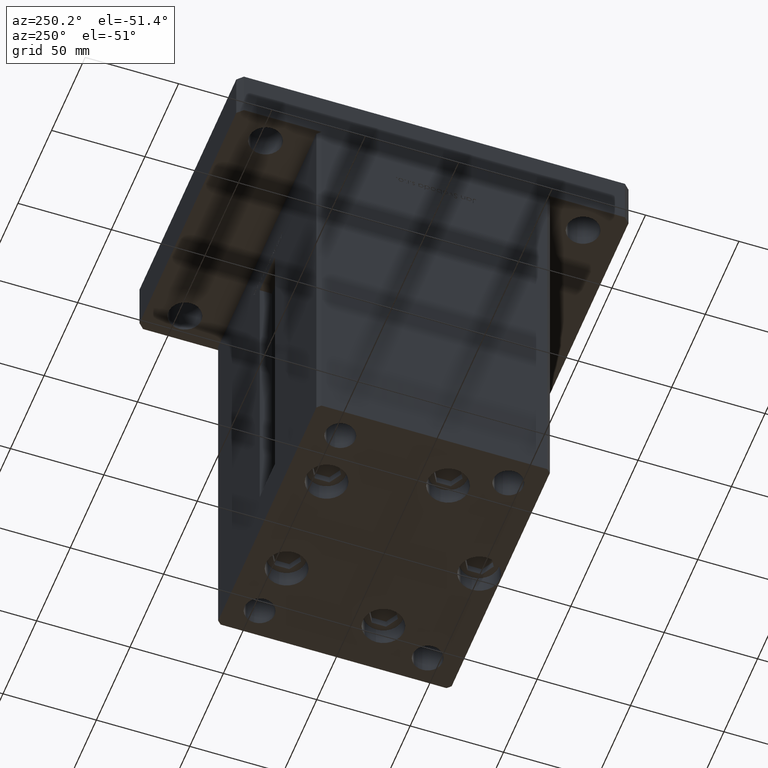
[diagram: clean part render]
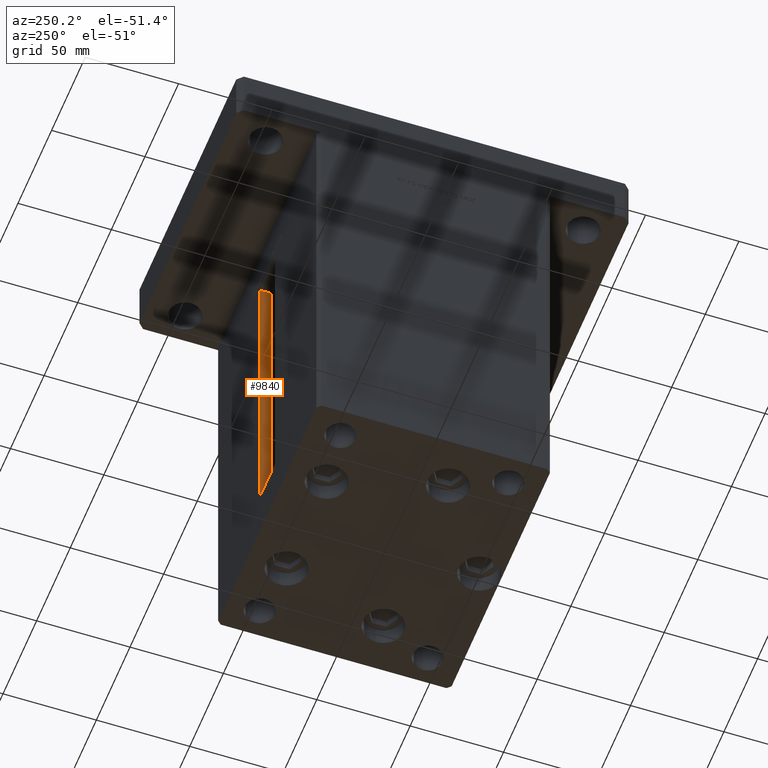
[diagram: same view with one face highlighted and labeled with its STEP entity id]
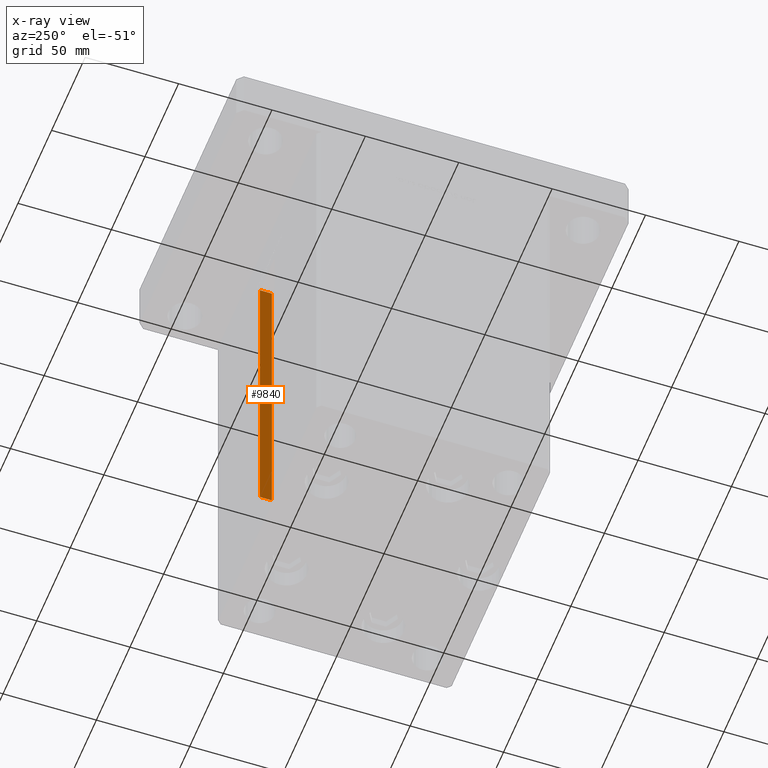
[diagram: x-ray of the same camera — body ghosted, the highlighted face saturated]
A machine part, auxiliary view. The second image highlights one B-rep face of the part: STEP entity #9840.
The next image is the same camera in x-ray: the body ghosted, the highlighted face saturated — about 0% of this face is hidden behind the body in this view.
In plain terms, the highlighted planar face has unit normal (1, 0, 0).
Its self-contained STEP definition (entity closure, byte-faithful):
#9840 = ADVANCED_FACE ( 'NONE', ( #28732 ), #41632, .F. ) ;
#11145 = CARTESIAN_POINT ( 'NONE',  ( 11.25000000000000178, 55.99999999999999289, 0.000000000000000000 ) ) ;
#11509 = VERTEX_POINT ( 'NONE', #35518 ) ;
#11578 = LINE ( 'NONE', #44942, #35975 ) ;
#13676 = EDGE_CURVE ( 'NONE', #11509, #29494, #49819, .T. ) ;
#14649 = EDGE_CURVE ( 'NONE', #17753, #29494, #46860, .T. ) ;
#16508 = VECTOR ( 'NONE', #45785, 1000.000000000000000 ) ;
#17411 = VECTOR ( 'NONE', #35442, 1000.000000000000000 ) ;
#17753 = VERTEX_POINT ( 'NONE', #11145 ) ;
#17806 = DIRECTION ( 'NONE',  ( -0.000000000000000000, -0.000000000000000000, 1.000000000000000000 ) ) ;
#20381 = DIRECTION ( 'NONE',  ( 0.000000000000000000, 0.000000000000000000, -1.000000000000000000 ) ) ;
#20545 = EDGE_LOOP ( 'NONE', ( #31215, #22092, #44328, #50112 ) ) ;
#21166 = CARTESIAN_POINT ( 'NONE',  ( 11.25000000000000178, 55.99999999999999289, 0.000000000000000000 ) ) ;
#22092 = ORIENTED_EDGE ( 'NONE', *, *, #44696, .F. ) ;
#22799 = LINE ( 'NONE', #30866, #17411 ) ;
#24168 = DIRECTION ( 'NONE',  ( 1.000000000000000000, -0.000000000000000000, 0.000000000000000000 ) ) ;
#28652 = CARTESIAN_POINT ( 'NONE',  ( 11.25000000000000178, 55.99999999999999289, 166.9999999999999432 ) ) ;
#28732 = FACE_OUTER_BOUND ( 'NONE', #20545, .T. ) ;
#29494 = VERTEX_POINT ( 'NONE', #28652 ) ;
#30707 = CARTESIAN_POINT ( 'NONE',  ( 11.25000000000000178, 55.99999999999999289, 0.000000000000000000 ) ) ;
#30866 = CARTESIAN_POINT ( 'NONE',  ( 11.25000000000000178, 62.49999999999999289, 0.000000000000000000 ) ) ;
#31215 = ORIENTED_EDGE ( 'NONE', *, *, #36058, .F. ) ;
#32623 = CARTESIAN_POINT ( 'NONE',  ( 11.25000000000000178, 0.000000000000000000, 167.0000000000000000 ) ) ;
#34378 = VERTEX_POINT ( 'NONE', #51571 ) ;
#35442 = DIRECTION ( 'NONE',  ( -0.000000000000000000, -0.000000000000000000, 1.000000000000000000 ) ) ;
#35518 = CARTESIAN_POINT ( 'NONE',  ( 11.24999999999999112, 62.49999999999999289, 167.0000000000000000 ) ) ;
#35975 = VECTOR ( 'NONE', #40900, 1000.000000000000000 ) ;
#36058 = EDGE_CURVE ( 'NONE', #34378, #11509, #22799, .T. ) ;
#38838 = VECTOR ( 'NONE', #17806, 1000.000000000000000 ) ;
#40900 = DIRECTION ( 'NONE',  ( 0.000000000000000000, 1.000000000000000000, 0.000000000000000000 ) ) ;
#41632 = PLANE ( 'NONE',  #47493 ) ;
#44328 = ORIENTED_EDGE ( 'NONE', *, *, #14649, .T. ) ;
#44696 = EDGE_CURVE ( 'NONE', #17753, #34378, #11578, .T. ) ;
#44942 = CARTESIAN_POINT ( 'NONE',  ( 11.25000000000000178, 55.99999999999999289, 0.000000000000000000 ) ) ;
#45785 = DIRECTION ( 'NONE',  ( -0.000000000000000000, -1.000000000000000000, 0.000000000000000000 ) ) ;
#46860 = LINE ( 'NONE', #30707, #38838 ) ;
#47493 = AXIS2_PLACEMENT_3D ( 'NONE', #21166, #24168, #20381 ) ;
#49819 = LINE ( 'NONE', #32623, #16508 ) ;
#50112 = ORIENTED_EDGE ( 'NONE', *, *, #13676, .F. ) ;
#51571 = CARTESIAN_POINT ( 'NONE',  ( 11.25000000000000178, 62.49999999999999289, 0.000000000000000000 ) ) ;